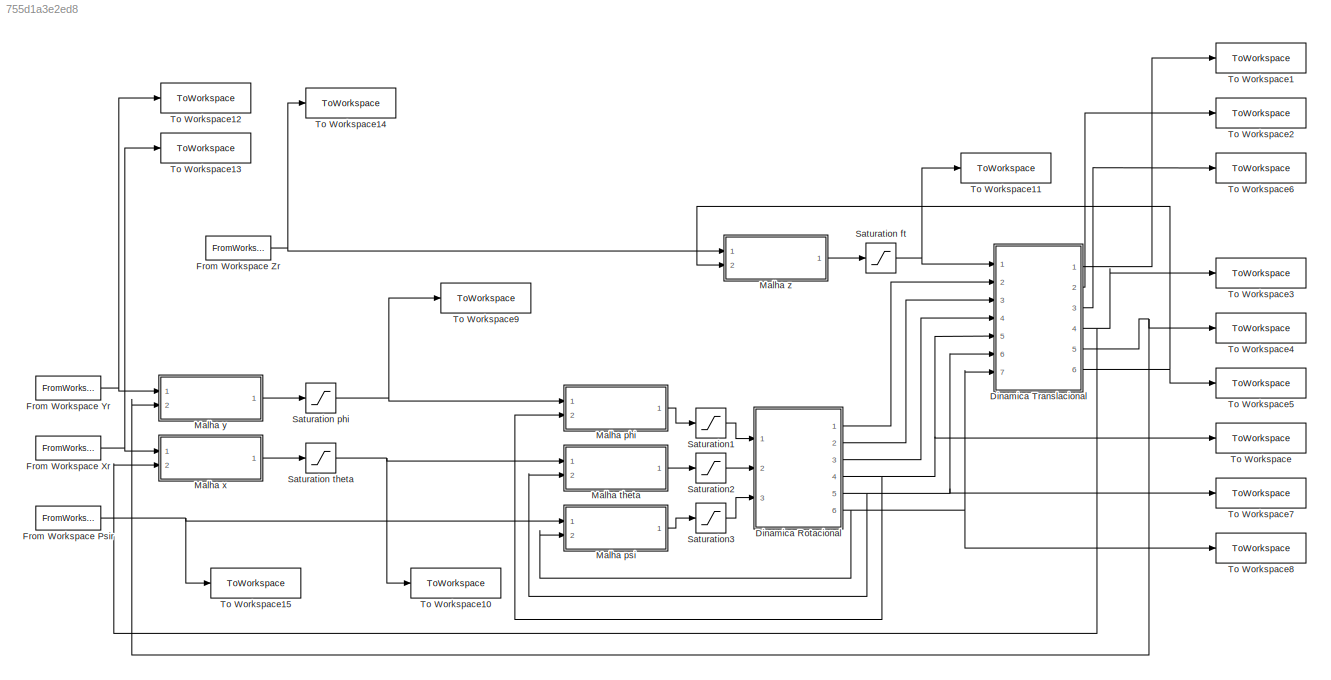
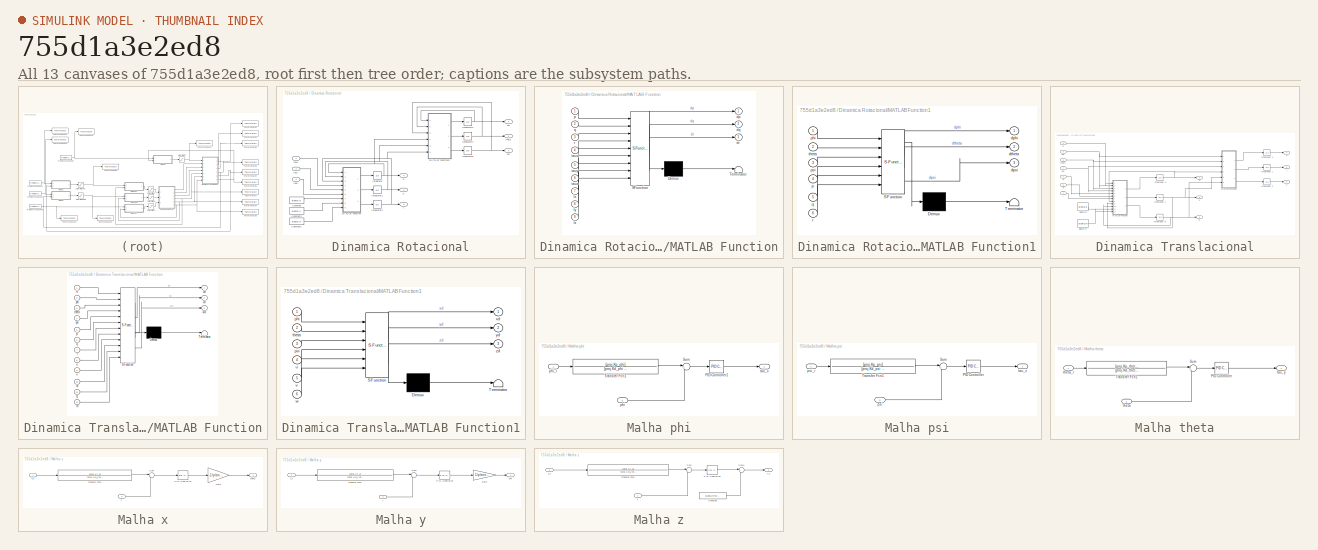
[diagram: thumbnail index - all 13 canvases of the model, root first then tree order]
MODEL slx_755d1a3e2ed8
KIND model
CONFIG AbsTol = auto
CONFIG EnableMultiTasking = off
CONFIG FixedStep = auto
CONFIG MaxStep = auto
CONFIG MinStep = auto
CONFIG RelTol = 1e-3
CONFIG SampleTimeConstraint = Unconstrained
CONFIG SolverName = VariableStepAuto
CONFIG StartTime = 0.0
CONFIG StopTime = 3
BLOCK [SubSystem] Dinamica Rotacional
  Ports = [3, 6]
  RequestExecContextInheritance = off
BLOCK [Constant] Dinamica Rotacional/Constant
  Value = planta.Ix
BLOCK [Constant] Dinamica Rotacional/Constant1
  Value = planta.Iz
BLOCK [Constant] Dinamica Rotacional/Constant2
  Value = planta.Iy
BLOCK [Integrator] Dinamica Rotacional/Integrator
  Ports = [1, 1]
BLOCK [Integrator] Dinamica Rotacional/Integrator1
  Ports = [1, 1]
BLOCK [Integrator] Dinamica Rotacional/Integrator2
  Ports = [1, 1]
BLOCK [Integrator] Dinamica Rotacional/Integrator3
  Ports = [1, 1]
BLOCK [Integrator] Dinamica Rotacional/Integrator4
  Ports = [1, 1]
BLOCK [Integrator] Dinamica Rotacional/Integrator5
  Ports = [1, 1]
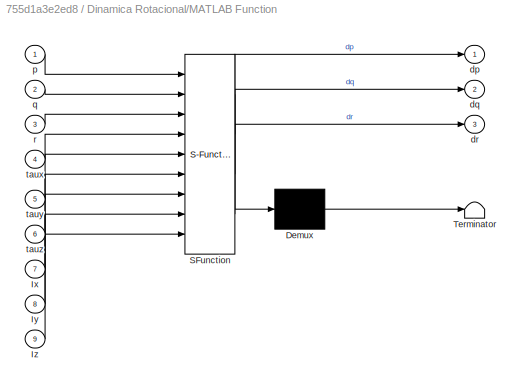
BLOCK [SubSystem] Dinamica Rotacional/MATLAB Function
  ErrorFcn = Stateflow.Translate.translate
  PermitHierarchicalResolution = ExplicitOnly
  Ports = [9, 3]
  RequestExecContextInheritance = off
  SFBlockType = MATLAB Function
  TreatAsAtomicUnit = on
BLOCK [Demux] Dinamica Rotacional/MATLAB Function/ Demux 
  Outputs = 1
  Ports = [1, 1]
BLOCK [S-Function] Dinamica Rotacional/MATLAB Function/ SFunction 
  EnableBusSupport = on
  FunctionName = sf_sfun
  PortCounts = [9 4]
  Ports = [9, 4]
  SFcnIsStateOwnerBlock = off
  SFunctionDeploymentMode = off
  Tag = Stateflow S-Function 3
BLOCK [Terminator] Dinamica Rotacional/MATLAB Function/ Terminator 
BLOCK [Inport] Dinamica Rotacional/MATLAB Function/Ix
  Port = 7
BLOCK [Inport] Dinamica Rotacional/MATLAB Function/Iy
  Port = 8
BLOCK [Inport] Dinamica Rotacional/MATLAB Function/Iz
  Port = 9
BLOCK [Outport] Dinamica Rotacional/MATLAB Function/dp
BLOCK [Outport] Dinamica Rotacional/MATLAB Function/dq
  Port = 2
BLOCK [Outport] Dinamica Rotacional/MATLAB Function/dr
  Port = 3
BLOCK [Inport] Dinamica Rotacional/MATLAB Function/p
BLOCK [Inport] Dinamica Rotacional/MATLAB Function/q
  Port = 2
BLOCK [Inport] Dinamica Rotacional/MATLAB Function/r
  Port = 3
BLOCK [Inport] Dinamica Rotacional/MATLAB Function/taux
  Port = 4
BLOCK [Inport] Dinamica Rotacional/MATLAB Function/tauy
  Port = 5
BLOCK [Inport] Dinamica Rotacional/MATLAB Function/tauz
  Port = 6
BLOCK [SubSystem] Dinamica Rotacional/MATLAB Function1
  ErrorFcn = Stateflow.Translate.translate
  PermitHierarchicalResolution = ExplicitOnly
  Ports = [6, 3]
  RequestExecContextInheritance = off
  SFBlockType = MATLAB Function
  TreatAsAtomicUnit = on
BLOCK [Demux] Dinamica Rotacional/MATLAB Function1/ Demux 
  Outputs = 1
  Ports = [1, 1]
BLOCK [S-Function] Dinamica Rotacional/MATLAB Function1/ SFunction 
  EnableBusSupport = on
  FunctionName = sf_sfun
  PortCounts = [6 4]
  Ports = [6, 4]
  SFcnIsStateOwnerBlock = off
  SFunctionDeploymentMode = off
  Tag = Stateflow S-Function 4
BLOCK [Terminator] Dinamica Rotacional/MATLAB Function1/ Terminator 
BLOCK [Outport] Dinamica Rotacional/MATLAB Function1/dphi
BLOCK [Outport] Dinamica Rotacional/MATLAB Function1/dpsi
  Port = 3
BLOCK [Outport] Dinamica Rotacional/MATLAB Function1/dtheta
  Port = 2
BLOCK [Inport] Dinamica Rotacional/MATLAB Function1/p
  Port = 4
BLOCK [Inport] Dinamica Rotacional/MATLAB Function1/phi
BLOCK [Inport] Dinamica Rotacional/MATLAB Function1/psi
  Port = 3
BLOCK [Inport] Dinamica Rotacional/MATLAB Function1/q
  Port = 5
BLOCK [Inport] Dinamica Rotacional/MATLAB Function1/r
  Port = 6
BLOCK [Inport] Dinamica Rotacional/MATLAB Function1/theta
  Port = 2
BLOCK [Outport] Dinamica Rotacional/p
BLOCK [Outport] Dinamica Rotacional/phi
  Port = 4
BLOCK [Outport] Dinamica Rotacional/psi
  Port = 6
BLOCK [Outport] Dinamica Rotacional/q
  Port = 2
BLOCK [Outport] Dinamica Rotacional/r
  Port = 3
BLOCK [Inport] Dinamica Rotacional/taux
BLOCK [Inport] Dinamica Rotacional/tauy
  Port = 2
BLOCK [Inport] Dinamica Rotacional/tauz
  Port = 3
BLOCK [Outport] Dinamica Rotacional/theta
  Port = 5
BLOCK [SubSystem] Dinamica Translacional
  Ports = [7, 6]
  RequestExecContextInheritance = off
BLOCK [Integrator] Dinamica Translacional/Integrador u
  Ports = [1, 1]
BLOCK [Integrator] Dinamica Translacional/Integrador v
  Ports = [1, 1]
BLOCK [Integrator] Dinamica Translacional/Integrador w
  Ports = [1, 1]
BLOCK [Integrator] Dinamica Translacional/Integrador x
  Ports = [1, 1]
BLOCK [Integrator] Dinamica Translacional/Integrador y
  Ports = [1, 1]
BLOCK [Integrator] Dinamica Translacional/Integrador z
  Ports = [1, 1]
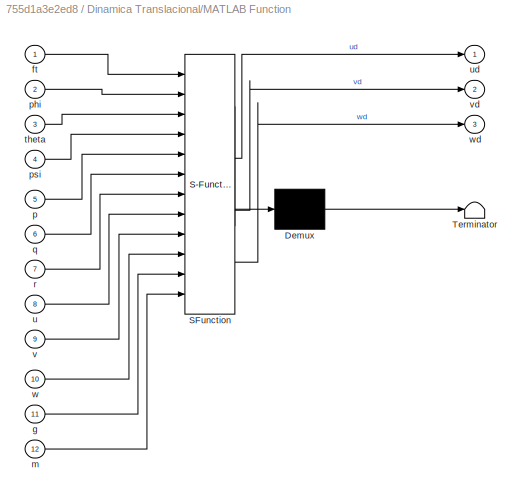
BLOCK [SubSystem] Dinamica Translacional/MATLAB Function
  ErrorFcn = Stateflow.Translate.translate
  PermitHierarchicalResolution = ExplicitOnly
  Ports = [12, 3]
  RequestExecContextInheritance = off
  SFBlockType = MATLAB Function
  TreatAsAtomicUnit = on
BLOCK [Demux] Dinamica Translacional/MATLAB Function/ Demux 
  Outputs = 1
  Ports = [1, 1]
BLOCK [S-Function] Dinamica Translacional/MATLAB Function/ SFunction 
  EnableBusSupport = on
  FunctionName = sf_sfun
  PortCounts = [12 4]
  Ports = [12, 4]
  SFcnIsStateOwnerBlock = off
  SFunctionDeploymentMode = off
  Tag = Stateflow S-Function 2
BLOCK [Terminator] Dinamica Translacional/MATLAB Function/ Terminator 
BLOCK [Inport] Dinamica Translacional/MATLAB Function/ft
BLOCK [Inport] Dinamica Translacional/MATLAB Function/g
  Port = 11
BLOCK [Inport] Dinamica Translacional/MATLAB Function/m
  Port = 12
BLOCK [Inport] Dinamica Translacional/MATLAB Function/p
  Port = 5
BLOCK [Inport] Dinamica Translacional/MATLAB Function/phi
  Port = 2
BLOCK [Inport] Dinamica Translacional/MATLAB Function/psi
  Port = 4
BLOCK [Inport] Dinamica Translacional/MATLAB Function/q
  Port = 6
BLOCK [Inport] Dinamica Translacional/MATLAB Function/r
  Port = 7
BLOCK [Inport] Dinamica Translacional/MATLAB Function/theta
  Port = 3
BLOCK [Inport] Dinamica Translacional/MATLAB Function/u
  Port = 8
BLOCK [Outport] Dinamica Translacional/MATLAB Function/ud
BLOCK [Inport] Dinamica Translacional/MATLAB Function/v
  Port = 9
BLOCK [Outport] Dinamica Translacional/MATLAB Function/vd
  Port = 2
BLOCK [Inport] Dinamica Translacional/MATLAB Function/w
  Port = 10
BLOCK [Outport] Dinamica Translacional/MATLAB Function/wd
  Port = 3
BLOCK [SubSystem] Dinamica Translacional/MATLAB Function1
  ErrorFcn = Stateflow.Translate.translate
  PermitHierarchicalResolution = ExplicitOnly
  Ports = [6, 3]
  RequestExecContextInheritance = off
  SFBlockType = MATLAB Function
  TreatAsAtomicUnit = on
BLOCK [Demux] Dinamica Translacional/MATLAB Function1/ Demux 
  Outputs = 1
  Ports = [1, 1]
BLOCK [S-Function] Dinamica Translacional/MATLAB Function1/ SFunction 
  EnableBusSupport = on
  FunctionName = sf_sfun
  PortCounts = [6 4]
  Ports = [6, 4]
  SFcnIsStateOwnerBlock = off
  SFunctionDeploymentMode = off
  Tag = Stateflow S-Function 1
BLOCK [Terminator] Dinamica Translacional/MATLAB Function1/ Terminator 
BLOCK [Inport] Dinamica Translacional/MATLAB Function1/phi
BLOCK [Inport] Dinamica Translacional/MATLAB Function1/psi
  Port = 3
BLOCK [Inport] Dinamica Translacional/MATLAB Function1/theta
  Port = 2
BLOCK [Inport] Dinamica Translacional/MATLAB Function1/u
  Port = 4
BLOCK [Inport] Dinamica Translacional/MATLAB Function1/v
  Port = 5
BLOCK [Inport] Dinamica Translacional/MATLAB Function1/w
  Port = 6
BLOCK [Outport] Dinamica Translacional/MATLAB Function1/xd
BLOCK [Outport] Dinamica Translacional/MATLAB Function1/yd
  Port = 2
BLOCK [Outport] Dinamica Translacional/MATLAB Function1/zd
  Port = 3
BLOCK [Inport] Dinamica Translacional/ft
BLOCK [Inport] Dinamica Translacional/p
  Port = 2
BLOCK [Inport] Dinamica Translacional/phi
  Port = 5
BLOCK [Constant] Dinamica Translacional/planta.g
  Value = planta.g
BLOCK [Constant] Dinamica Translacional/planta.m
  Value = planta.m
BLOCK [Inport] Dinamica Translacional/psi
  Port = 7
BLOCK [Inport] Dinamica Translacional/q
  Port = 3
BLOCK [Inport] Dinamica Translacional/r
  Port = 4
BLOCK [Inport] Dinamica Translacional/theta
  Port = 6
BLOCK [Outport] Dinamica Translacional/u
  PortDimensions = 1
BLOCK [Outport] Dinamica Translacional/v
  Port = 2
  PortDimensions = 1
BLOCK [Outport] Dinamica Translacional/w
  Port = 3
  PortDimensions = 1
BLOCK [Outport] Dinamica Translacional/x
  Port = 4
  PortDimensions = 1
BLOCK [Outport] Dinamica Translacional/y
  Port = 5
  PortDimensions = 1
BLOCK [Outport] Dinamica Translacional/z
  Port = 6
  PortDimensions = 1
BLOCK [FromWorkspace] From Workspace Psir
  VariableName = psir
BLOCK [FromWorkspace] From Workspace Xr
  VariableName = xr
BLOCK [FromWorkspace] From Workspace Yr
  VariableName = yr
BLOCK [FromWorkspace] From Workspace Zr
  VariableName = zr
BLOCK [SubSystem] Malha phi
  Ports = [2, 1]
  RequestExecContextInheritance = off
BLOCK [Reference] Malha phi/PID Controller1  REF=pid_lib/PID Controller
  Ports = [1, 1]
  SourceBlock = pid_lib/PID Controller
  SourceProductBaseCode = SL
  SourceType = PID 1dof
BLOCK [Sum] Malha phi/Sum
  Inputs = |+-
  Ports = [2, 1]
BLOCK [TransferFcn] Malha phi/Transfer Fcn1
  Denominator = [proj.Kd_phi proj.Kp_phi]
  Numerator = [proj.Kp_phi]
BLOCK [Inport] Malha phi/phi
  Port = 2
BLOCK [Inport] Malha phi/phi_r
BLOCK [Outport] Malha phi/tau_x
BLOCK [SubSystem] Malha psi
  Ports = [2, 1]
  RequestExecContextInheritance = off
BLOCK [Reference] Malha psi/PID Controller  REF=pid_lib/PID Controller
  Ports = [1, 1]
  SourceBlock = pid_lib/PID Controller
  SourceProductBaseCode = SL
  SourceType = PID 1dof
BLOCK [Sum] Malha psi/Sum
  Inputs = |+-
  Ports = [2, 1]
BLOCK [TransferFcn] Malha psi/Transfer Fcn1
  Denominator = [proj.Kd_psi proj.Kp_psi]
  Numerator = [proj.Kp_psi]
BLOCK [Inport] Malha psi/psi
  Port = 2
BLOCK [Inport] Malha psi/psi_r
BLOCK [Outport] Malha psi/tau_z
BLOCK [SubSystem] Malha theta
  Ports = [2, 1]
  RequestExecContextInheritance = off
BLOCK [Reference] Malha theta/PID Controller  REF=pid_lib/PID Controller
  Ports = [1, 1]
  SourceBlock = pid_lib/PID Controller
  SourceProductBaseCode = SL
  SourceType = PID 1dof
BLOCK [Sum] Malha theta/Sum
  Inputs = |+-
  Ports = [2, 1]
BLOCK [TransferFcn] Malha theta/Transfer Fcn1
  Denominator = [proj.Kd_theta proj.Kp_theta]
  Numerator = [proj.Kp_theta]
BLOCK [Outport] Malha theta/tau_y
BLOCK [Inport] Malha theta/theta
  Port = 2
BLOCK [Inport] Malha theta/theta_r
BLOCK [SubSystem] Malha x
  Ports = [2, 1]
  RequestExecContextInheritance = off
BLOCK [Gain] Malha x/Gain
  Gain = -1/planta.g
BLOCK [Reference] Malha x/PID Controller  REF=pid_lib/PID Controller
  Ports = [1, 1]
  SourceBlock = pid_lib/PID Controller
  SourceProductBaseCode = SL
  SourceType = PID 1dof
BLOCK [Sum] Malha x/Sum
  Inputs = |+-
  Ports = [2, 1]
BLOCK [TransferFcn] Malha x/Transfer Fcn1
  Denominator = [proj.Kd_x proj.Kp_x proj.Ki_x]
  Numerator = [proj.Ki_x]
BLOCK [Outport] Malha x/theta
BLOCK [Inport] Malha x/x
  Port = 2
BLOCK [Inport] Malha x/x_r
BLOCK [SubSystem] Malha y
  Ports = [2, 1]
  RequestExecContextInheritance = off
BLOCK [Gain] Malha y/Gain
  Gain = 1/planta.g
BLOCK [Reference] Malha y/PID Controller  REF=pid_lib/PID Controller
  Ports = [1, 1]
  SourceBlock = pid_lib/PID Controller
  SourceProductBaseCode = SL
  SourceType = PID 1dof
BLOCK [Sum] Malha y/Sum
  Inputs = |+-
  Ports = [2, 1]
BLOCK [TransferFcn] Malha y/Transfer Fcn1
  Denominator = [proj.Kd_y proj.Kp_y proj.Ki_y]
  Numerator = [proj.Ki_y]
BLOCK [Outport] Malha y/phi
BLOCK [Inport] Malha y/y
  Port = 2
BLOCK [Inport] Malha y/y_r
BLOCK [SubSystem] Malha z
  Ports = [2, 1]
  RequestExecContextInheritance = off
BLOCK [Constant] Malha z/Constant
  Value = planta.m*planta.g
BLOCK [Reference] Malha z/PID Controller  REF=pid_lib/PID Controller
  Ports = [1, 1]
  SourceBlock = pid_lib/PID Controller
  SourceProductBaseCode = SL
  SourceType = PID 1dof
BLOCK [Sum] Malha z/Sum
  Inputs = |+-
  Ports = [2, 1]
BLOCK [Sum] Malha z/Sum1
  Inputs = |++
  Ports = [2, 1]
BLOCK [TransferFcn] Malha z/Transfer Fcn1
  Denominator = [proj.Kd_z proj.Kp_z proj.Ki_z]
  Numerator = [proj.Ki_z]
BLOCK [Outport] Malha z/f_t
BLOCK [Inport] Malha z/z
  Port = 2
BLOCK [Inport] Malha z/z_r
BLOCK [Saturate] Saturation ft
  LowerLimit = 0.1*planta.m*planta.g
  UpperLimit = 2*planta.m*planta.g
BLOCK [Saturate] Saturation phi
  LowerLimit = -pi/6
  UpperLimit = pi/6
BLOCK [Saturate] Saturation theta
  LowerLimit = -pi/6
  UpperLimit = pi/6
BLOCK [Saturate] Saturation1
  LowerLimit = -2*sqrt(2)*planta.l*planta.m*planta.g
  UpperLimit = 2*sqrt(2)*planta.l*planta.m*planta.g
BLOCK [Saturate] Saturation2
  LowerLimit = -2*sqrt(2)*planta.l*planta.m*planta.g
  UpperLimit = 2*sqrt(2)*planta.l*planta.m*planta.g
BLOCK [Saturate] Saturation3
  LowerLimit = -2*sqrt(2)*planta.l*planta.m*planta.g
  UpperLimit = 2*sqrt(2)*planta.l*planta.m*planta.g
BLOCK [ToWorkspace] To Workspace
  FixptAsFi = on
  MaxDataPoints = inf
  Ports = [1]
  SampleTime = -1
  SaveFormat = Timeseries
  VariableName = phi
BLOCK [ToWorkspace] To Workspace1
  FixptAsFi = on
  MaxDataPoints = inf
  Ports = [1]
  SampleTime = -1
  SaveFormat = Timeseries
  VariableName = u
BLOCK [ToWorkspace] To Workspace10
  FixptAsFi = on
  MaxDataPoints = inf
  Ports = [1]
  SampleTime = -1
  SaveFormat = Timeseries
  VariableName = theta_r
BLOCK [ToWorkspace] To Workspace11
  FixptAsFi = on
  MaxDataPoints = inf
  Ports = [1]
  SampleTime = -1
  SaveFormat = Timeseries
  VariableName = ft
BLOCK [ToWorkspace] To Workspace12
  FixptAsFi = on
  MaxDataPoints = inf
  Ports = [1]
  SampleTime = -1
  SaveFormat = Timeseries
  VariableName = yr
BLOCK [ToWorkspace] To Workspace13
  FixptAsFi = on
  MaxDataPoints = inf
  Ports = [1]
  SampleTime = -1
  SaveFormat = Timeseries
  VariableName = xr
BLOCK [ToWorkspace] To Workspace14
  FixptAsFi = on
  MaxDataPoints = inf
  Ports = [1]
  SampleTime = -1
  SaveFormat = Timeseries
  VariableName = zr
BLOCK [ToWorkspace] To Workspace15
  FixptAsFi = on
  MaxDataPoints = inf
  Ports = [1]
  SampleTime = -1
  SaveFormat = Timeseries
  VariableName = psir
BLOCK [ToWorkspace] To Workspace2
  FixptAsFi = on
  MaxDataPoints = inf
  Ports = [1]
  SampleTime = -1
  SaveFormat = Timeseries
  VariableName = v
BLOCK [ToWorkspace] To Workspace3
  FixptAsFi = on
  MaxDataPoints = inf
  Ports = [1]
  SampleTime = -1
  SaveFormat = Timeseries
  VariableName = x
BLOCK [ToWorkspace] To Workspace4
  FixptAsFi = on
  MaxDataPoints = inf
  Ports = [1]
  SampleTime = -1
  SaveFormat = Timeseries
  VariableName = y
BLOCK [ToWorkspace] To Workspace5
  FixptAsFi = on
  MaxDataPoints = inf
  Ports = [1]
  SampleTime = -1
  SaveFormat = Timeseries
  VariableName = z
BLOCK [ToWorkspace] To Workspace6
  FixptAsFi = on
  MaxDataPoints = inf
  Ports = [1]
  SampleTime = -1
  SaveFormat = Timeseries
  VariableName = w
BLOCK [ToWorkspace] To Workspace7
  FixptAsFi = on
  MaxDataPoints = inf
  Ports = [1]
  SampleTime = -1
  SaveFormat = Timeseries
  VariableName = theta
BLOCK [ToWorkspace] To Workspace8
  FixptAsFi = on
  MaxDataPoints = inf
  Ports = [1]
  SampleTime = -1
  SaveFormat = Timeseries
  VariableName = psi
BLOCK [ToWorkspace] To Workspace9
  FixptAsFi = on
  MaxDataPoints = inf
  Ports = [1]
  SampleTime = -1
  SaveFormat = Timeseries
  VariableName = phi_r
LINE Dinamica Rotacional/Constant1:1 -> Dinamica Rotacional/MATLAB Function:9
LINE Dinamica Rotacional/Constant2:1 -> Dinamica Rotacional/MATLAB Function:8
LINE Dinamica Rotacional/Constant:1 -> Dinamica Rotacional/MATLAB Function:7
NET Dinamica Rotacional/Integrator1:1 -> Dinamica Rotacional/MATLAB Function1:5, Dinamica Rotacional/MATLAB Function:2, Dinamica Rotacional/q:1
NET Dinamica Rotacional/Integrator2:1 -> Dinamica Rotacional/MATLAB Function1:6, Dinamica Rotacional/MATLAB Function:3, Dinamica Rotacional/r:1
NET Dinamica Rotacional/Integrator3:1 -> Dinamica Rotacional/MATLAB Function1:1, Dinamica Rotacional/phi:1
NET Dinamica Rotacional/Integrator4:1 -> Dinamica Rotacional/MATLAB Function1:2, Dinamica Rotacional/theta:1
NET Dinamica Rotacional/Integrator5:1 -> Dinamica Rotacional/MATLAB Function1:3, Dinamica Rotacional/psi:1
NET Dinamica Rotacional/Integrator:1 -> Dinamica Rotacional/MATLAB Function1:4, Dinamica Rotacional/MATLAB Function:1, Dinamica Rotacional/p:1
LINE Dinamica Rotacional/MATLAB Function1:1 -> Dinamica Rotacional/Integrator3:1
LINE Dinamica Rotacional/MATLAB Function1:2 -> Dinamica Rotacional/Integrator4:1
LINE Dinamica Rotacional/MATLAB Function1:3 -> Dinamica Rotacional/Integrator5:1
LINE Dinamica Rotacional/MATLAB Function:1 -> Dinamica Rotacional/Integrator:1
LINE Dinamica Rotacional/MATLAB Function:2 -> Dinamica Rotacional/Integrator1:1
LINE Dinamica Rotacional/MATLAB Function:3 -> Dinamica Rotacional/Integrator2:1
LINE Dinamica Rotacional/taux:1 -> Dinamica Rotacional/MATLAB Function:4
LINE Dinamica Rotacional/tauy:1 -> Dinamica Rotacional/MATLAB Function:5
LINE Dinamica Rotacional/tauz:1 -> Dinamica Rotacional/MATLAB Function:6
LINE Dinamica Rotacional:1 -> Dinamica Translacional:2
LINE Dinamica Rotacional:2 -> Dinamica Translacional:3
LINE Dinamica Rotacional:3 -> Dinamica Translacional:4
NET Dinamica Rotacional:4 -> Dinamica Translacional:5, Malha phi:2, To Workspace:1
NET Dinamica Rotacional:5 -> Dinamica Translacional:6, Malha theta:2, To Workspace7:1
NET Dinamica Rotacional:6 -> Dinamica Translacional:7, Malha psi:2, To Workspace8:1
NET Dinamica Translacional/Integrador u:1 -> Dinamica Translacional/MATLAB Function1:4, Dinamica Translacional/MATLAB Function:8, Dinamica Translacional/u:1
NET Dinamica Translacional/Integrador v:1 -> Dinamica Translacional/MATLAB Function1:5, Dinamica Translacional/MATLAB Function:9, Dinamica Translacional/v:1
NET Dinamica Translacional/Integrador w:1 -> Dinamica Translacional/MATLAB Function1:6, Dinamica Translacional/MATLAB Function:10, Dinamica Translacional/w:1
LINE Dinamica Translacional/Integrador x:1 -> Dinamica Translacional/x:1
LINE Dinamica Translacional/Integrador y:1 -> Dinamica Translacional/y:1
LINE Dinamica Translacional/Integrador z:1 -> Dinamica Translacional/z:1
LINE Dinamica Translacional/MATLAB Function1:1 -> Dinamica Translacional/Integrador x:1
LINE Dinamica Translacional/MATLAB Function1:2 -> Dinamica Translacional/Integrador y:1
LINE Dinamica Translacional/MATLAB Function1:3 -> Dinamica Translacional/Integrador z:1
LINE Dinamica Translacional/MATLAB Function:1 -> Dinamica Translacional/Integrador u:1
LINE Dinamica Translacional/MATLAB Function:2 -> Dinamica Translacional/Integrador v:1
LINE Dinamica Translacional/MATLAB Function:3 -> Dinamica Translacional/Integrador w:1
LINE Dinamica Translacional/ft:1 -> Dinamica Translacional/MATLAB Function:1
LINE Dinamica Translacional/p:1 -> Dinamica Translacional/MATLAB Function:5
NET Dinamica Translacional/phi:1 -> Dinamica Translacional/MATLAB Function1:1, Dinamica Translacional/MATLAB Function:2
LINE Dinamica Translacional/planta.g:1 -> Dinamica Translacional/MATLAB Function:11
LINE Dinamica Translacional/planta.m:1 -> Dinamica Translacional/MATLAB Function:12
NET Dinamica Translacional/psi:1 -> Dinamica Translacional/MATLAB Function1:3, Dinamica Translacional/MATLAB Function:4
LINE Dinamica Translacional/q:1 -> Dinamica Translacional/MATLAB Function:6
LINE Dinamica Translacional/r:1 -> Dinamica Translacional/MATLAB Function:7
NET Dinamica Translacional/theta:1 -> Dinamica Translacional/MATLAB Function1:2, Dinamica Translacional/MATLAB Function:3
LINE Dinamica Translacional:1 -> To Workspace1:1
LINE Dinamica Translacional:2 -> To Workspace2:1
LINE Dinamica Translacional:3 -> To Workspace6:1
NET Dinamica Translacional:4 -> Malha x:2, To Workspace3:1
NET Dinamica Translacional:5 -> Malha y:2, To Workspace4:1
NET Dinamica Translacional:6 -> Malha z:2, To Workspace5:1
NET From Workspace Psir:1 -> Malha psi:1, To Workspace15:1
NET From Workspace Xr:1 -> Malha x:1, To Workspace13:1
NET From Workspace Yr:1 -> Malha y:1, To Workspace12:1
NET From Workspace Zr:1 -> Malha z:1, To Workspace14:1
LINE Malha phi/PID Controller1:1 -> Malha phi/tau_x:1
LINE Malha phi/Sum:1 -> Malha phi/PID Controller1:1
LINE Malha phi/Transfer Fcn1:1 -> Malha phi/Sum:1
LINE Malha phi/phi:1 -> Malha phi/Sum:2
LINE Malha phi/phi_r:1 -> Malha phi/Transfer Fcn1:1
LINE Malha phi:1 -> Saturation1:1
LINE Malha psi/PID Controller:1 -> Malha psi/tau_z:1
LINE Malha psi/Sum:1 -> Malha psi/PID Controller:1
LINE Malha psi/Transfer Fcn1:1 -> Malha psi/Sum:1
LINE Malha psi/psi:1 -> Malha psi/Sum:2
LINE Malha psi/psi_r:1 -> Malha psi/Transfer Fcn1:1
LINE Malha psi:1 -> Saturation3:1
LINE Malha theta/PID Controller:1 -> Malha theta/tau_y:1
LINE Malha theta/Sum:1 -> Malha theta/PID Controller:1
LINE Malha theta/Transfer Fcn1:1 -> Malha theta/Sum:1
LINE Malha theta/theta:1 -> Malha theta/Sum:2
LINE Malha theta/theta_r:1 -> Malha theta/Transfer Fcn1:1
LINE Malha theta:1 -> Saturation2:1
LINE Malha x/Gain:1 -> Malha x/theta:1
LINE Malha x/PID Controller:1 -> Malha x/Gain:1
LINE Malha x/Sum:1 -> Malha x/PID Controller:1
LINE Malha x/Transfer Fcn1:1 -> Malha x/Sum:1
LINE Malha x/x:1 -> Malha x/Sum:2
LINE Malha x/x_r:1 -> Malha x/Transfer Fcn1:1
LINE Malha x:1 -> Saturation theta:1
LINE Malha y/Gain:1 -> Malha y/phi:1
LINE Malha y/PID Controller:1 -> Malha y/Gain:1
LINE Malha y/Sum:1 -> Malha y/PID Controller:1
LINE Malha y/Transfer Fcn1:1 -> Malha y/Sum:1
LINE Malha y/y:1 -> Malha y/Sum:2
LINE Malha y/y_r:1 -> Malha y/Transfer Fcn1:1
LINE Malha y:1 -> Saturation phi:1
LINE Malha z/Constant:1 -> Malha z/Sum1:2
LINE Malha z/PID Controller:1 -> Malha z/Sum1:1
LINE Malha z/Sum1:1 -> Malha z/f_t:1
LINE Malha z/Sum:1 -> Malha z/PID Controller:1
LINE Malha z/Transfer Fcn1:1 -> Malha z/Sum:1
LINE Malha z/z:1 -> Malha z/Sum:2
LINE Malha z/z_r:1 -> Malha z/Transfer Fcn1:1
LINE Malha z:1 -> Saturation ft:1
NET Saturation ft:1 -> Dinamica Translacional:1, To Workspace11:1
NET Saturation phi:1 -> Malha phi:1, To Workspace9:1
NET Saturation theta:1 -> Malha theta:1, To Workspace10:1
LINE Saturation1:1 -> Dinamica Rotacional:1
LINE Saturation2:1 -> Dinamica Rotacional:2
LINE Saturation3:1 -> Dinamica Rotacional:3
note: NET lines group one-source signal fan-out (src -> all destinations, sorted); 1:1 wires keep LINE
CHART Dinamica Translacional/MATLAB Function1 states=1 transitions=1
  STATE_LABEL 'eML_blk_kernel()'
  STATE_LABEL 'SCRIPT:\nfunction [xd, yd, zd] = fcn(phi, theta, psi, u, v, w)\n\n    xd1 = cos(psi)*cos(theta)*u;\n    xd2 = (cos(psi)*sin(phi)*sin(theta)-cos(phi)*sin(psi))*v;\n    xd3 = (sin(phi)*sin(psi)+cos(phi)*cos(psi)*sin(theta))*w;\n    xd = xd1+xd2+xd3;\n    \n    yd1 = cos(theta)*sin(psi)*u;\n    yd2 = (cos(phi)*cos(psi)+sin(phi)*sin(psi)*sin(theta))*v;\n    yd3 = (cos(phi)*sin(psi)*sin(theta)-cos(psi)*sin(phi))...<+111ch>'
CHART Dinamica Translacional/MATLAB Function states=1 transitions=1
  STATE_LABEL 'eML_blk_kernel()'
  STATE_LABEL 'SCRIPT:\nfunction [ud, vd, wd] = fcn(ft,  phi, theta, psi, p, q, r, u, v, w, g,m)\n\n    ud = r*v - q*w - g * sin(theta);\n    vd = -r*u + p*w + g * sin(phi)*cos(theta);\n    wd = q*u - p*v + g * cos(phi)*cos(theta) - ft/m;\n\nend'
CHART Dinamica Rotacional/MATLAB Function states=1 transitions=1
  STATE_LABEL 'eML_blk_kernel()'
  STATE_LABEL 'SCRIPT:\nfunction [dp, dq, dr]= fcn(p, q, r, taux, tauy, tauz, Ix, Iy, Iz)\n    dp = (Iy-Iz)/Ix*r*q + taux/Ix;\n    dq = (Iz-Ix)/Iy*p*r + tauy/Iy;\n    dr = (Ix-Iy)/Iz*p*q + tauz/Iz;\nend\n'
CHART Dinamica Rotacional/MATLAB Function1 states=1 transitions=1
  STATE_LABEL 'eML_blk_kernel()'
  STATE_LABEL 'SCRIPT:\nfunction [dphi, dtheta, dpsi]= fcn(phi, theta, psi, p, q, r)\n    dphi = p + sin(phi)*tan(theta)*q + cos(phi)*tan(theta)*r;\n    dtheta = q*cos(phi) - r*sin(phi);\n    dpsi = (q*sin(phi) + r*cos(phi))/cos(theta);\n\nend\n'
CHART  states=0 transitions=0
CHART  states=0 transitions=0
CHART  states=0 transitions=0
CHART  states=0 transitions=0
